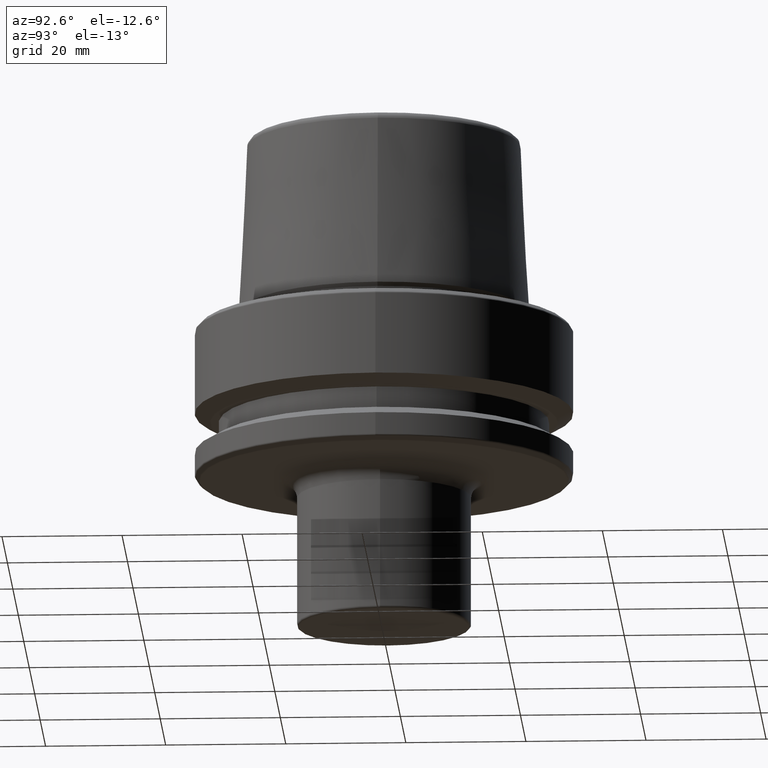
[diagram: clean part render]
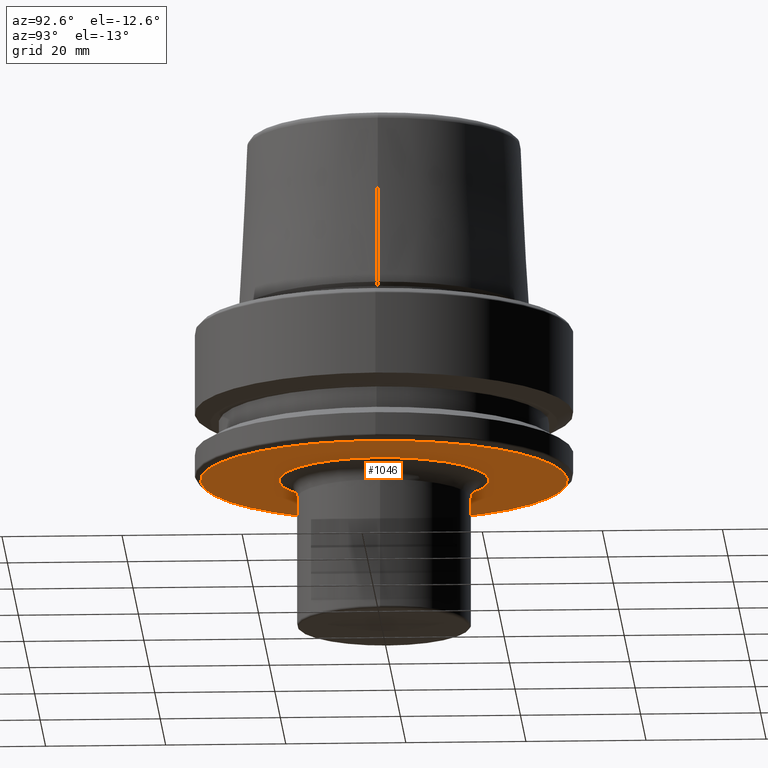
[diagram: same view with one face highlighted and labeled with its STEP entity id]
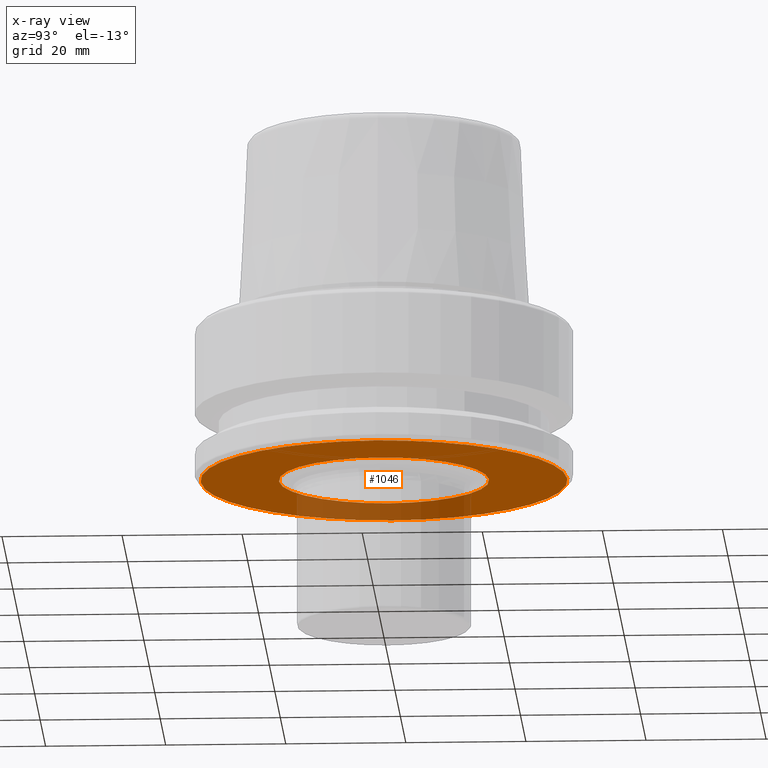
[diagram: x-ray of the same camera — body ghosted, the highlighted face saturated]
A machine part, auxiliary view. The second image highlights one B-rep face of the part: STEP entity #1046.
The next image is the same camera in x-ray: the body ghosted, the highlighted face saturated — about 21% of this face is hidden behind the body in this view.
In plain terms, the highlighted planar face has unit normal (0, -0, 1).
Its self-contained STEP definition (entity closure, byte-faithful):
#8 = ORIENTED_EDGE ( 'NONE', *, *, #484, .T. ) ;
#64 = CARTESIAN_POINT ( 'NONE',  ( 17.50000000000000400, -6.938893903907228400E-015, -26.00000000000001100 ) ) ;
#104 = DIRECTION ( 'NONE',  ( 0.0000000000000000000, -0.0000000000000000000, 1.000000000000000000 ) ) ;
#112 = CARTESIAN_POINT ( 'NONE',  ( 0.0000000000000000000, 0.0000000000000000000, -26.00000000000001100 ) ) ;
#142 = AXIS2_PLACEMENT_3D ( 'NONE', #458, #942, #365 ) ;
#174 = DIRECTION ( 'NONE',  ( 1.000000000000000000, 0.0000000000000000000, 0.0000000000000000000 ) ) ;
#175 = VERTEX_POINT ( 'NONE', #390 ) ;
#190 = CIRCLE ( 'NONE', #862, 17.50000000000000400 ) ;
#205 = CIRCLE ( 'NONE', #750, 30.53431457505076800 ) ;
#259 = FACE_OUTER_BOUND ( 'NONE', #1030, .T. ) ;
#322 = PLANE ( 'NONE',  #858 ) ;
#331 = ORIENTED_EDGE ( 'NONE', *, *, #830, .F. ) ;
#332 = ORIENTED_EDGE ( 'NONE', *, *, #374, .F. ) ;
#360 = VERTEX_POINT ( 'NONE', #930 ) ;
#365 = DIRECTION ( 'NONE',  ( 1.000000000000000000, 0.0000000000000000000, 0.0000000000000000000 ) ) ;
#374 = EDGE_CURVE ( 'NONE', #175, #755, #619, .T. ) ;
#390 = CARTESIAN_POINT ( 'NONE',  ( -30.53431457505076800, 3.756694181974139400E-015, -26.00000000000001100 ) ) ;
#444 = DIRECTION ( 'NONE',  ( 1.000000000000000000, 0.0000000000000000000, 0.0000000000000000000 ) ) ;
#448 = DIRECTION ( 'NONE',  ( 1.000000000000000000, 0.0000000000000000000, 0.0000000000000000000 ) ) ;
#458 = CARTESIAN_POINT ( 'NONE',  ( 0.0000000000000000000, -6.938893903907228400E-015, -26.00000000000001100 ) ) ;
#484 = EDGE_CURVE ( 'NONE', #360, #973, #190, .T. ) ;
#578 = ORIENTED_EDGE ( 'NONE', *, *, #928, .T. ) ;
#611 = DIRECTION ( 'NONE',  ( 1.000000000000000000, 0.0000000000000000000, 0.0000000000000000000 ) ) ;
#619 = CIRCLE ( 'NONE', #1224, 30.53431457505076800 ) ;
#626 = CARTESIAN_POINT ( 'NONE',  ( 30.53431457505076800, 0.0000000000000000000, -26.00000000000001100 ) ) ;
#638 = DIRECTION ( 'NONE',  ( -0.0000000000000000000, -0.0000000000000000000, 1.000000000000000000 ) ) ;
#642 = CARTESIAN_POINT ( 'NONE',  ( 0.0000000000000000000, 0.0000000000000000000, -26.00000000000001100 ) ) ;
#662 = CARTESIAN_POINT ( 'NONE',  ( 0.0000000000000000000, -6.938893903907228400E-015, -26.00000000000001100 ) ) ;
#750 = AXIS2_PLACEMENT_3D ( 'NONE', #112, #638, #444 ) ;
#755 = VERTEX_POINT ( 'NONE', #626 ) ;
#817 = DIRECTION ( 'NONE',  ( -0.0000000000000000000, -0.0000000000000000000, 1.000000000000000000 ) ) ;
#830 = EDGE_CURVE ( 'NONE', #755, #175, #205, .T. ) ;
#833 = CIRCLE ( 'NONE', #142, 17.50000000000000400 ) ;
#858 = AXIS2_PLACEMENT_3D ( 'NONE', #1085, #104, #611 ) ;
#862 = AXIS2_PLACEMENT_3D ( 'NONE', #662, #1051, #174 ) ;
#928 = EDGE_CURVE ( 'NONE', #973, #360, #833, .T. ) ;
#930 = CARTESIAN_POINT ( 'NONE',  ( -17.50000000000000400, -4.795762005399359300E-015, -26.00000000000001100 ) ) ;
#942 = DIRECTION ( 'NONE',  ( -0.0000000000000000000, -0.0000000000000000000, 1.000000000000000000 ) ) ;
#968 = FACE_BOUND ( 'NONE', #1258, .T. ) ;
#973 = VERTEX_POINT ( 'NONE', #64 ) ;
#1030 = EDGE_LOOP ( 'NONE', ( #331, #332 ) ) ;
#1046 = ADVANCED_FACE ( 'NONE', ( #968, #259 ), #322, .F. ) ;
#1051 = DIRECTION ( 'NONE',  ( -0.0000000000000000000, -0.0000000000000000000, 1.000000000000000000 ) ) ;
#1085 = CARTESIAN_POINT ( 'NONE',  ( 0.0000000000000000000, 30.53431457505076800, -26.00000000000001100 ) ) ;
#1224 = AXIS2_PLACEMENT_3D ( 'NONE', #642, #817, #448 ) ;
#1258 = EDGE_LOOP ( 'NONE', ( #578, #8 ) ) ;